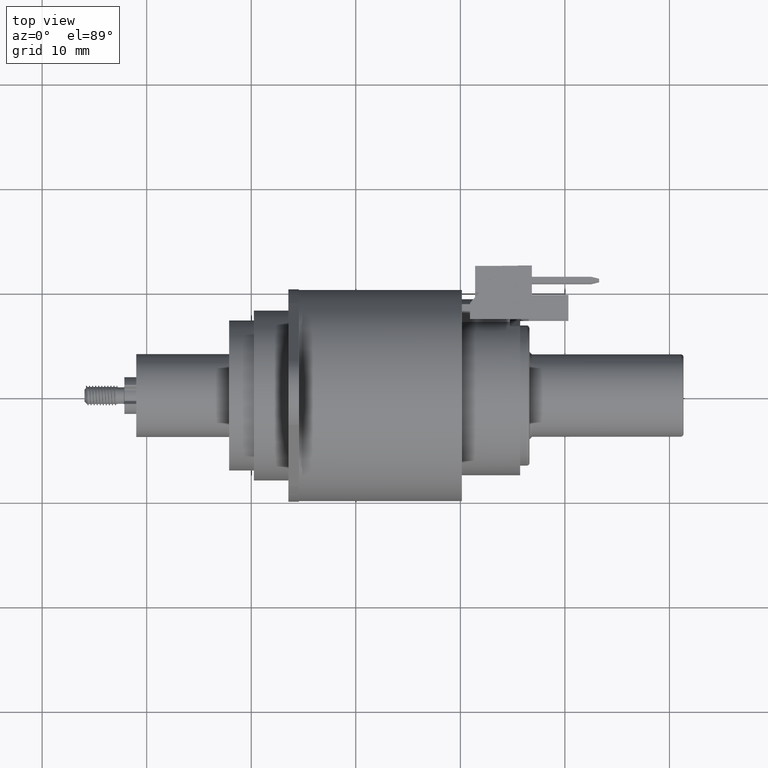
[diagram: clean part render]
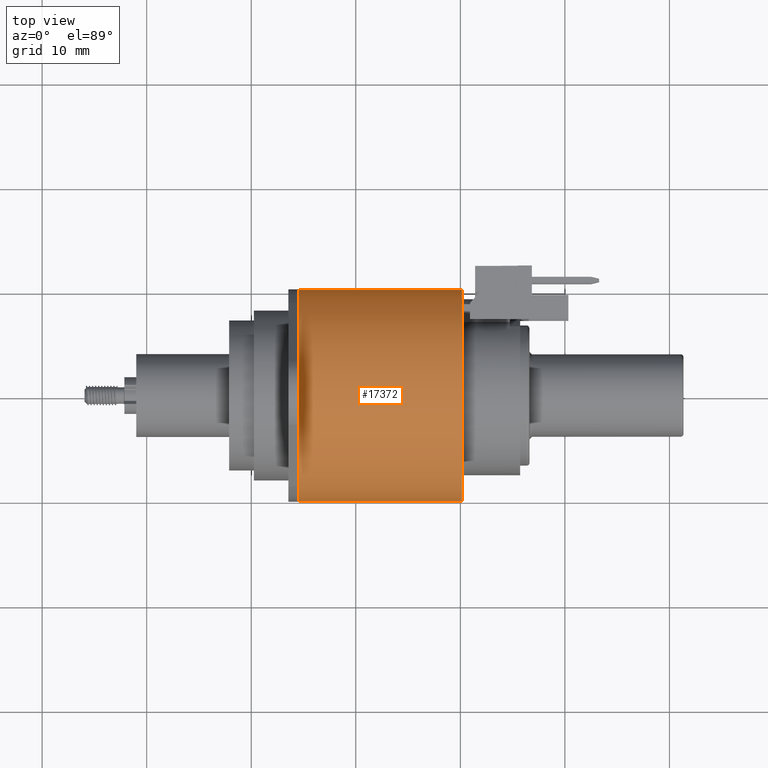
[diagram: same view with one face highlighted and labeled with its STEP entity id]
A machine part, top view. The second image highlights one B-rep face of the part: STEP entity #17372.
In plain terms, the highlighted cylindrical surface (partial cylindrical patch) has radius 10.0965 mm, axis along (1, 0, 0).
Its self-contained STEP definition (entity closure, byte-faithful):
#17268=CARTESIAN_POINT('',(0.E0,0.E0,-3.07E-1));
#17269=DIRECTION('',(0.E0,0.E0,1.E0));
#17270=DIRECTION('',(1.E0,0.E0,0.E0));
#17271=AXIS2_PLACEMENT_3D('',#17268,#17269,#17270);
#17288=DIRECTION('',(0.E0,0.E0,-1.E0));
#17289=VECTOR('',#17288,6.14E-1);
#17290=CARTESIAN_POINT('',(-3.975E-1,0.E0,3.07E-1));
#17291=LINE('',#17290,#17289);
#17292=DIRECTION('',(0.E0,0.E0,-1.E0));
#17293=VECTOR('',#17292,6.14E-1);
#17294=CARTESIAN_POINT('',(3.975E-1,0.E0,3.07E-1));
#17295=LINE('',#17294,#17293);
#17296=CARTESIAN_POINT('',(0.E0,0.E0,3.07E-1));
#17297=DIRECTION('',(0.E0,0.E0,-1.E0));
#17298=DIRECTION('',(-1.E0,0.E0,0.E0));
#17299=AXIS2_PLACEMENT_3D('',#17296,#17297,#17298);
#17324=CARTESIAN_POINT('',(3.975E-1,0.E0,-3.07E-1));
#17325=CARTESIAN_POINT('',(-3.975E-1,0.E0,-3.07E-1));
#17326=VERTEX_POINT('',#17324);
#17327=VERTEX_POINT('',#17325);
#17332=CARTESIAN_POINT('',(3.975E-1,0.E0,3.07E-1));
#17333=VERTEX_POINT('',#17332);
#17334=CARTESIAN_POINT('',(-3.975E-1,0.E0,3.07E-1));
#17335=VERTEX_POINT('',#17334);
#17358=CARTESIAN_POINT('',(0.E0,0.E0,-3.07E-1));
#17359=DIRECTION('',(0.E0,0.E0,1.E0));
#17360=DIRECTION('',(1.E0,0.E0,0.E0));
#17361=AXIS2_PLACEMENT_3D('',#17358,#17359,#17360);
#17362=CYLINDRICAL_SURFACE('',#17361,3.975E-1);
#17363=ORIENTED_EDGE('',*,*,#17345,.F.);
#17365=ORIENTED_EDGE('',*,*,#17364,.F.);
#17367=ORIENTED_EDGE('',*,*,#17366,.F.);
#17369=ORIENTED_EDGE('',*,*,#17368,.T.);
#17370=EDGE_LOOP('',(#17363,#17365,#17367,#17369));
#17371=FACE_OUTER_BOUND('',#17370,.F.);
#17372=ADVANCED_FACE('',(#17371),#17362,.T.);
#17272=CIRCLE('',#17271,3.975E-1);
#17300=CIRCLE('',#17299,3.975E-1);
#17345=EDGE_CURVE('',#17326,#17327,#17272,.T.);
#17364=EDGE_CURVE('',#17333,#17326,#17295,.T.);
#17366=EDGE_CURVE('',#17335,#17333,#17300,.T.);
#17368=EDGE_CURVE('',#17335,#17327,#17291,.T.);